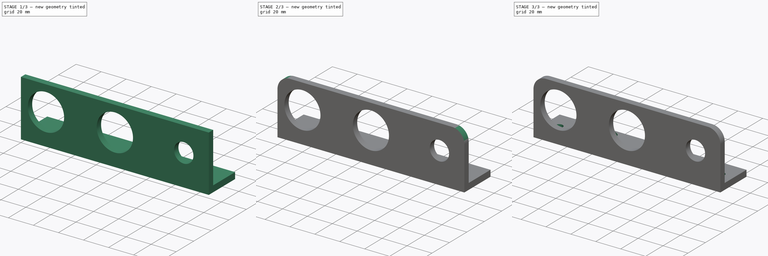
[diagram: build sequence overview — one tinted view per stage of 3, left to right]
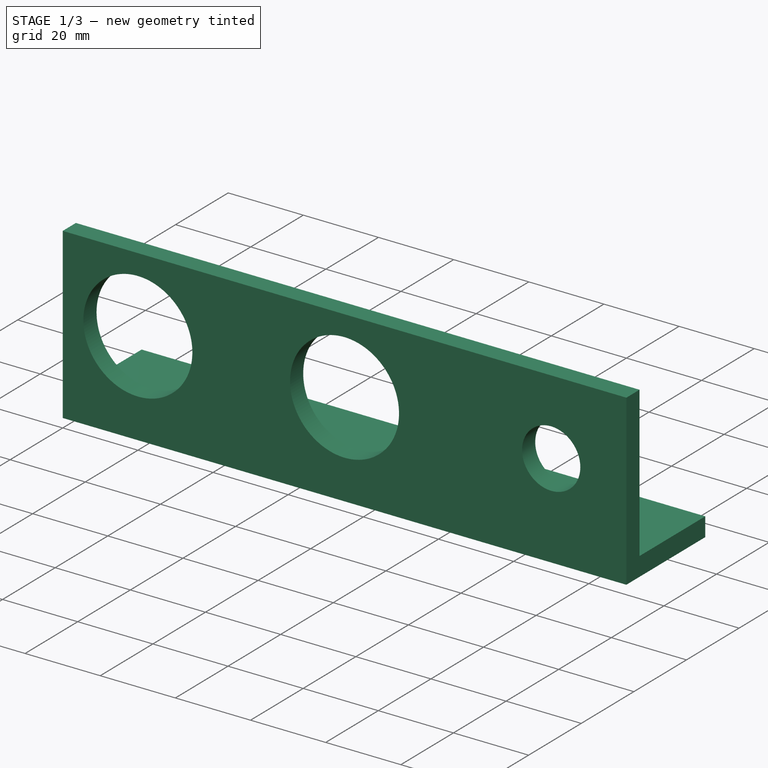
[diagram: stage 1 of 3 — iso view after this stage's code; geometry added in this stage tinted green]
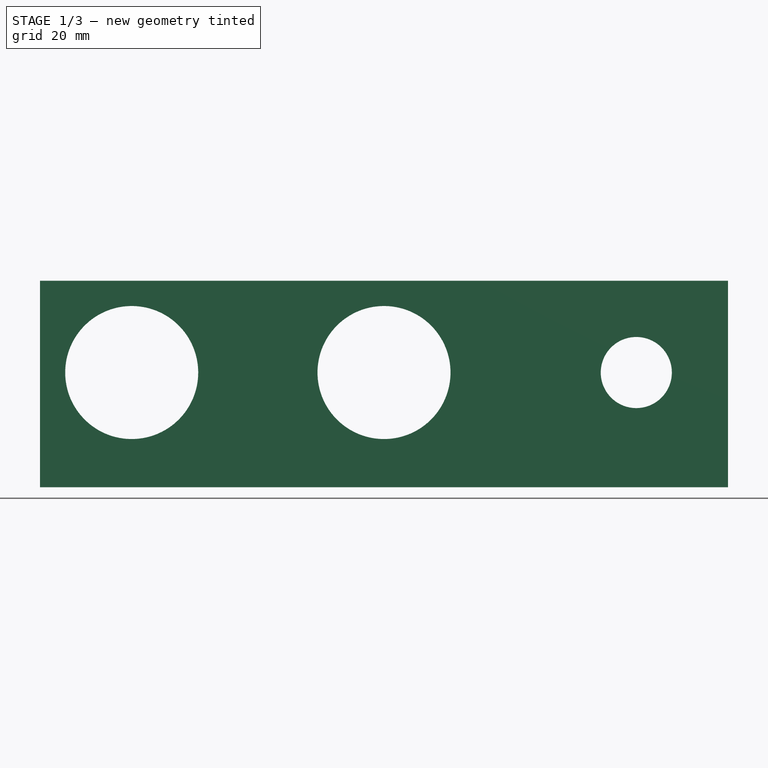
[diagram: stage 1 of 3 — front view after this stage's code; geometry added in this stage tinted green]
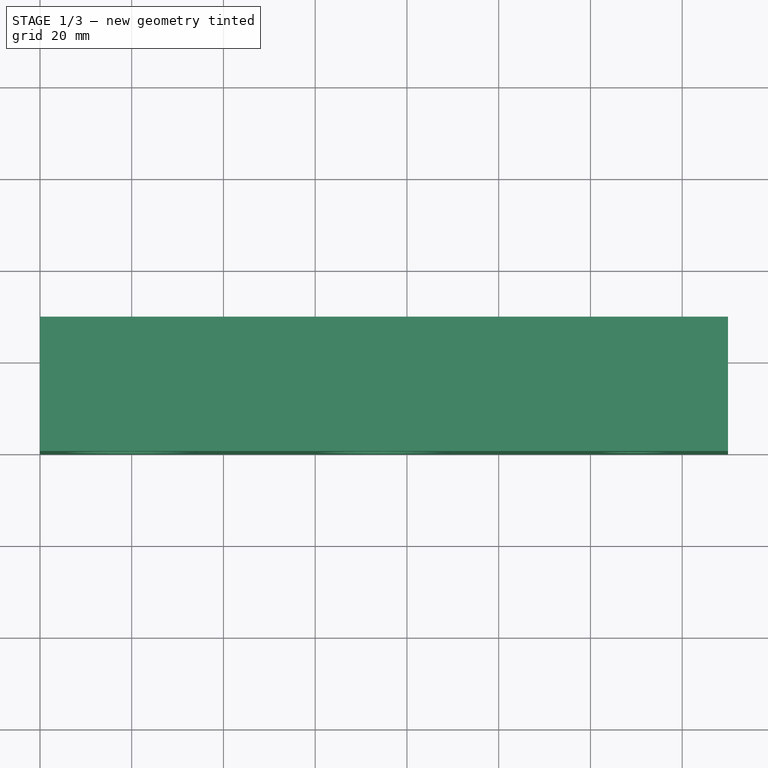
[diagram: stage 1 of 3 — top view after this stage's code; geometry added in this stage tinted green]
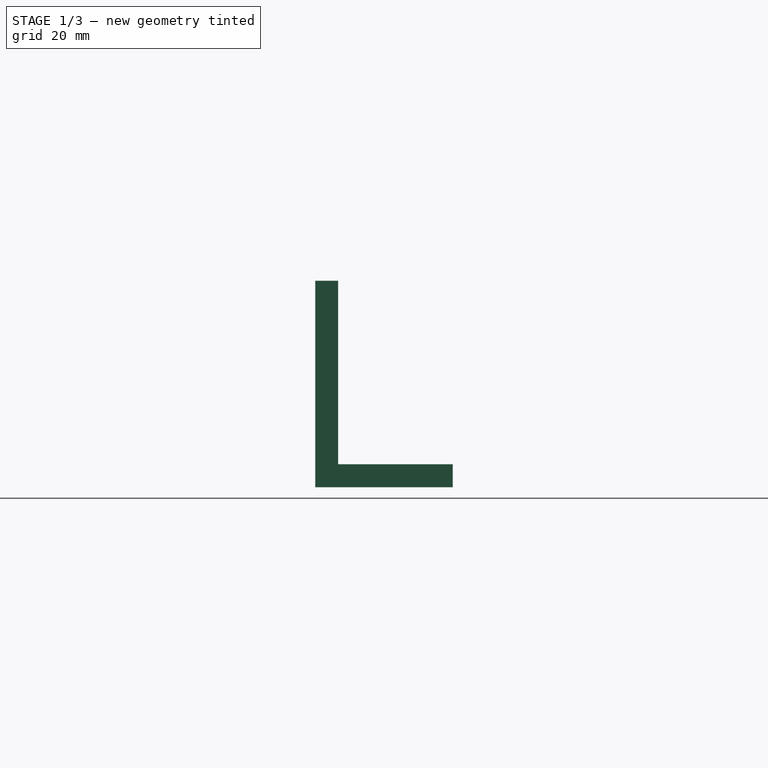
[diagram: stage 1 of 3 — right view after this stage's code; geometry added in this stage tinted green]
FCSTD DOCUMENT  (FreeCAD 0.19R24291 (Git))
Label: Haltewinkel_v2
License: All rights reserved
LicenseURL: http://en.wikipedia.org/wiki/All_rights_reserved
objects: Sketcher::SketchObject×6, PartDesign::Pad×4, PartDesign::Pocket×2, PartDesign::Fillet×1, PartDesign::Chamfer×1, PartDesign::Body×1
note: 23 computed .brp shape members not serialized (recipe doc carries the construction recipe); baked Part::Feature solids carry a one-line shape summary decoded from their .brp

FEATURE [Sketcher::SketchObject] Sketch
  FullyConstrained = true
  MapMode = 5
  Support = -> [XY_Plane]
  sketch-geometry (4):
    g0: LineSegment StartX=0 StartY=0 StartZ=0 EndX=150 EndY=0 EndZ=0
    g1: LineSegment StartX=150 StartY=0 StartZ=0 EndX=150 EndY=30 EndZ=0
    g2: LineSegment StartX=150 StartY=30 StartZ=0 EndX=0 EndY=30 EndZ=0
    g3: LineSegment StartX=0 StartY=30 StartZ=0 EndX=0 EndY=0 EndZ=0
  constraints (11):
    c: Coincident(g0,g1)
    c: Coincident(g1,g2)
    c: Coincident(g2,g3)
    c: Coincident(g3,g0)
    c: Horizontal(g0)
    c: Horizontal(g2)
    c: Vertical(g1)
    c: Vertical(g3)
    c: Coincident(g0,g-1)
    c: DistanceY(g1,g1) = 30
    c: DistanceX(g2,g2) = 150
FEATURE [PartDesign::Pad] Pad
  Direction = (1,1,1)
  Length = 5
  Length2 = 100
  Profile = -> Sketch
  Type = 0
FEATURE [Sketcher::SketchObject] Sketch001
  ExternalGeometry = -> [Pad]
  FullyConstrained = true
  MapMode = 5
  Placement = pos=(0,0,5) rot=(0,0,1;0rad)
  Support = -> [Pad]
  sketch-geometry (4):
    g0: LineSegment StartX=0 StartY=0 StartZ=0 EndX=150 EndY=0 EndZ=0
    g1: LineSegment StartX=150 StartY=0 StartZ=0 EndX=150 EndY=5 EndZ=0
    g2: LineSegment StartX=150 StartY=5 StartZ=0 EndX=0 EndY=5 EndZ=0
    g3: LineSegment StartX=0 StartY=5 StartZ=0 EndX=0 EndY=0 EndZ=0
  constraints (11):
    c: Coincident(g0,g1)
    c: Coincident(g1,g2)
    c: Coincident(g2,g3)
    c: Coincident(g3,g0)
    c: Horizontal(g0)
    c: Horizontal(g2)
    c: Vertical(g1)
    c: Vertical(g3)
    c: Coincident(g0,g-1)
    c: PointOnObject(g1,g-3)
    c: DistanceY(g1,g1) = 5
FEATURE [PartDesign::Pad] Pad001
  BaseFeature = -> Pad
  Direction = (1,1,1)
  Length = 40
  Length2 = 100
  Profile = -> Sketch001
  Type = 0
FEATURE [Sketcher::SketchObject] Sketch002
  ExternalGeometry = -> [Pad001]
  FullyConstrained = true
  MapMode = 5
  Placement = pos=(0,0,0) rot=(1,0,0;1.5708rad)
  Support = -> [Pad001]
  sketch-geometry (9):
    g0: LineSegment StartX=0 StartY=45 StartZ=0 EndX=20 EndY=25 EndZ=0
    g1: LineSegment StartX=130 StartY=25 StartZ=0 EndX=150 EndY=45 EndZ=0
    g2: LineSegment StartX=20 StartY=25 StartZ=0 EndX=0 EndY=5 EndZ=0
    g3: LineSegment StartX=130 StartY=25 StartZ=0 EndX=150 EndY=5 EndZ=0
    g4: Circle CenterX=20 CenterY=25 CenterZ=0 NormalX=0 NormalY=0 NormalZ=1 AngleXU=0 Radius=14.5
    g5: Circle CenterX=75 CenterY=25 CenterZ=0 NormalX=0 NormalY=0 NormalZ=1 AngleXU=0 Radius=14.5
    g6: Circle CenterX=130 CenterY=25 CenterZ=0 NormalX=0 NormalY=0 NormalZ=1 AngleXU=0 Radius=7.75
    g7: LineSegment StartX=20 StartY=25 StartZ=0 EndX=75 EndY=25 EndZ=0
    g8: LineSegment StartX=75 StartY=25 StartZ=0 EndX=130 EndY=25 EndZ=0
  constraints (21):
    c: Coincident(g0,g-3)
    c: Coincident(g1,g-3)
    c: Coincident(g2,g0)
    c: Coincident(g2,g-4)
    c: Coincident(g3,g-4)
    c: Equal(g1,g3)
    c: Equal(g0,g1)
    c: Coincident(g4,g0)
    c: Coincident(g7,g4)
    c: Coincident(g7,g5)
    c: Horizontal(g7)
    c: Coincident(g8,g5)
    c: Coincident(g8,g6)
    c: Horizontal(g8)
    c: Equal(g8,g7)
    c: Coincident(g6,g1)
    c: Coincident(g3,g6)
    c: Diameter(g6) = 15.5
    c: Diameter(g5) = 29
    c: Diameter(g4) = 29
    c: Angle(g0,g2) = 1.5708
FEATURE [PartDesign::Pocket] Pocket  label="Bohrungen"
  BaseFeature = -> Pad001
  Length = 5
  Length2 = 100
  Profile = -> Sketch002
  Type = 1
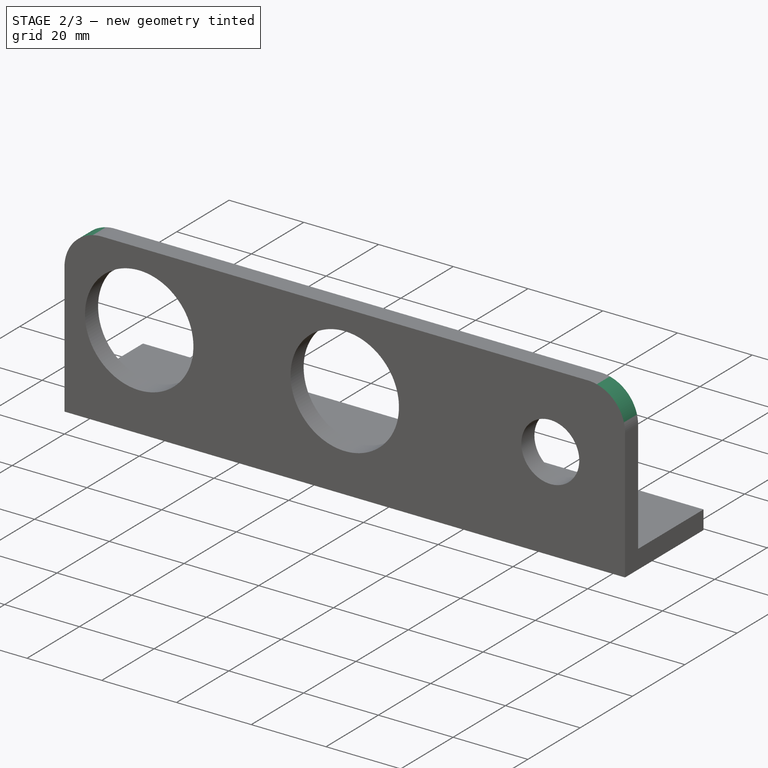
[diagram: stage 2 of 3 — iso view after this stage's code; geometry added in this stage tinted green]
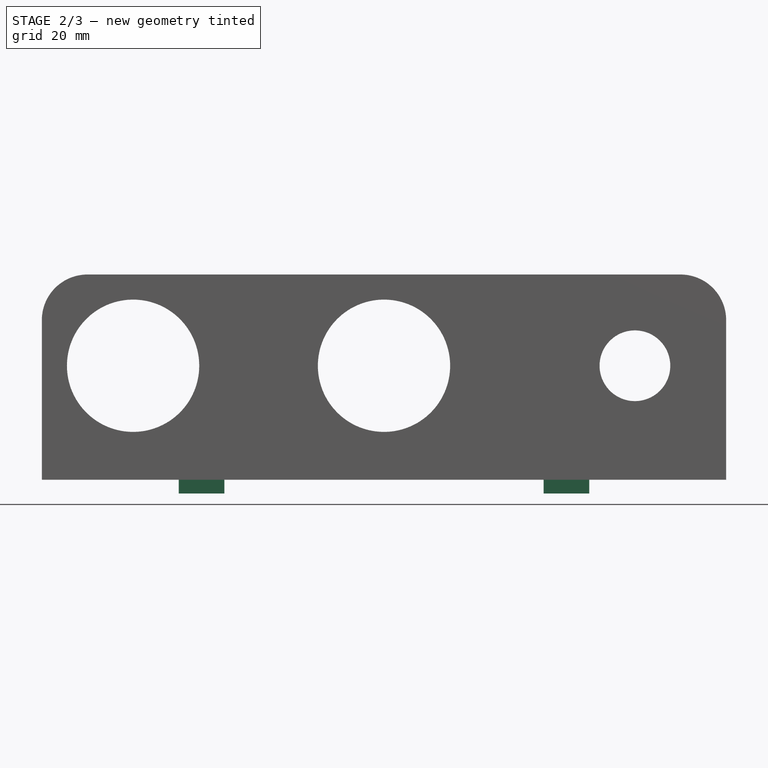
[diagram: stage 2 of 3 — front view after this stage's code; geometry added in this stage tinted green]
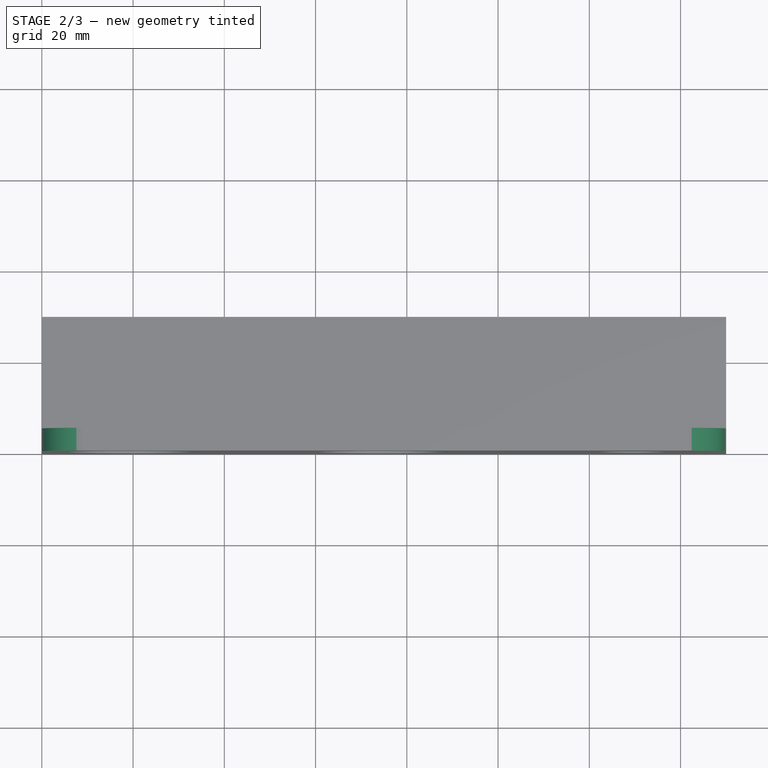
[diagram: stage 2 of 3 — top view after this stage's code; geometry added in this stage tinted green]
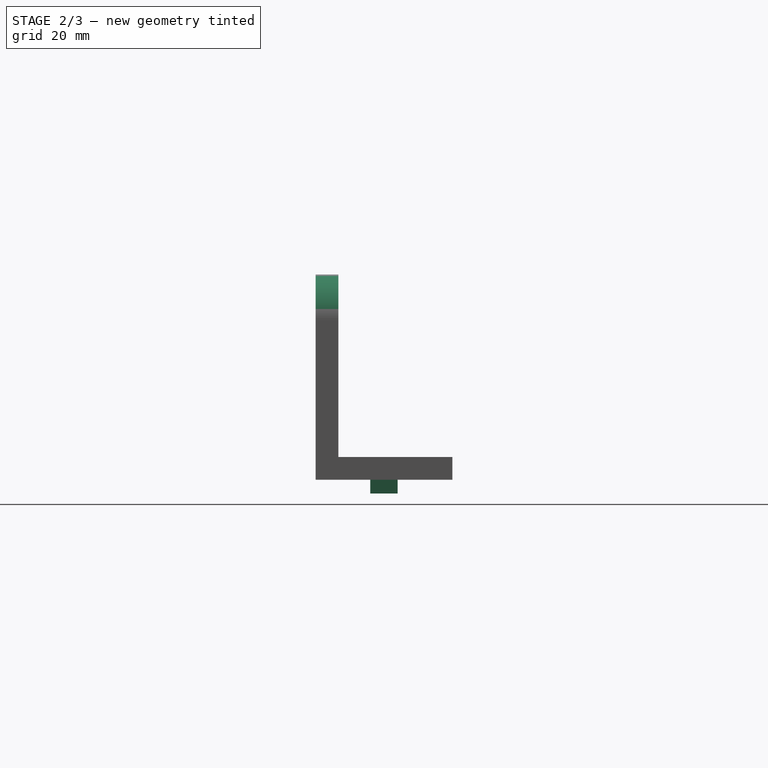
[diagram: stage 2 of 3 — right view after this stage's code; geometry added in this stage tinted green]
FEATURE [PartDesign::Fillet] Fillet  label="Abrundung"
  Base = -> Pocket [Edge25,Edge23]
  BaseFeature = -> Pocket
  Radius = 10
  SupportTransform = false
FEATURE [Sketcher::SketchObject] Sketch003
  ExternalGeometry = -> [Fillet]
  FullyConstrained = true
  MapMode = 5
  Placement = pos=(0,0,0) rot=(1,0,0;3.14159rad)
  sketch-geometry (13):
    g0: LineSegment StartX=30 StartY=-12 StartZ=0 EndX=40 EndY=-12 EndZ=0
    g1: LineSegment StartX=40 StartY=-12 StartZ=0 EndX=40 EndY=-18 EndZ=0
    g2: LineSegment StartX=40 StartY=-18 StartZ=0 EndX=30 EndY=-18 EndZ=0
    g3: LineSegment StartX=30 StartY=-18 StartZ=0 EndX=30 EndY=-12 EndZ=0
    g4: LineSegment StartX=110 StartY=-12 StartZ=0 EndX=120 EndY=-12 EndZ=0
    g5: LineSegment StartX=120 StartY=-12 StartZ=0 EndX=120 EndY=-18 EndZ=0
    g6: LineSegment StartX=120 StartY=-18 StartZ=0 EndX=110 EndY=-18 EndZ=0
    g7: LineSegment StartX=110 StartY=-18 StartZ=0 EndX=110 EndY=-12 EndZ=0
    g8: LineSegment StartX=40 StartY=-12 StartZ=0 EndX=110 EndY=-12 EndZ=0
    g9: LineSegment StartX=150 StartY=0 StartZ=0 EndX=110 EndY=-12 EndZ=0
    g10: LineSegment StartX=110 StartY=-18 StartZ=0 EndX=150 EndY=-30 EndZ=0
    g11: LineSegment StartX=30 StartY=-12 StartZ=0 EndX=0 EndY=-12 EndZ=0
    g12: LineSegment StartX=120 StartY=-12 StartZ=0 EndX=150 EndY=-12 EndZ=0
  constraints (36):
    c: Coincident(g0,g1)
    c: Coincident(g1,g2)
    c: Coincident(g2,g3)
    c: Coincident(g3,g0)
    c: Horizontal(g0)
    c: Horizontal(g2)
    c: Vertical(g1)
    c: Vertical(g3)
    c: Coincident(g4,g5)
    c: Coincident(g5,g6)
    c: Coincident(g6,g7)
    c: Coincident(g7,g4)
    c: Horizontal(g4)
    c: Horizontal(g6)
    c: Vertical(g5)
    c: Vertical(g7)
    c: Coincident(g8,g0)
    c: Coincident(g8,g4)
    c: Horizontal(g8)
    c: Equal(g7,g1)
    c: Equal(g0,g4)
    c: DistanceY(g5,g5) = 6
    c: Coincident(g9,g4)
    c: Coincident(g10,g6)
    c: Equal(g9,g10)
    c: DistanceX(g0,g0) = 10
    c: Coincident(g-3,g9)
    c: Coincident(g10,g-3)
    c: Coincident(g11,g0)
    c: PointOnObject(g11,g-2)
    c: Horizontal(g11)
    c: Coincident(g12,g4)
    c: PointOnObject(g12,g-3)
    c: Horizontal(g12)
    c: Equal(g12,g11)
    c: DistanceX(g11,g11) = 30
FEATURE [PartDesign::Pad] Pad002  label="Verdrehsicherung"
  BaseFeature = -> Fillet
  Direction = (1,1,1)
  Length = 3
  Length2 = 100
  Profile = -> Sketch003
  Type = 0
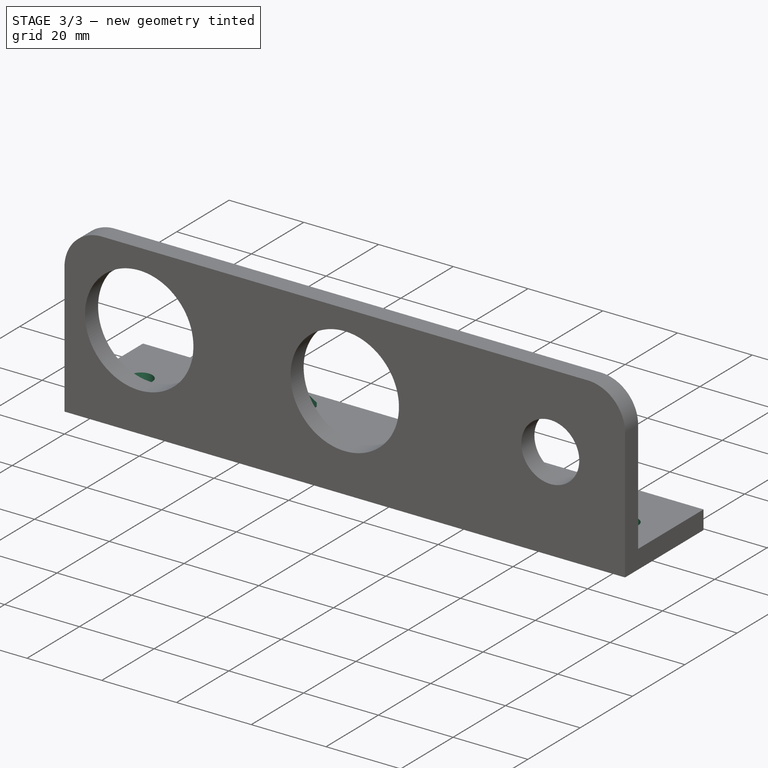
[diagram: stage 3 of 3 — iso view after this stage's code; geometry added in this stage tinted green]
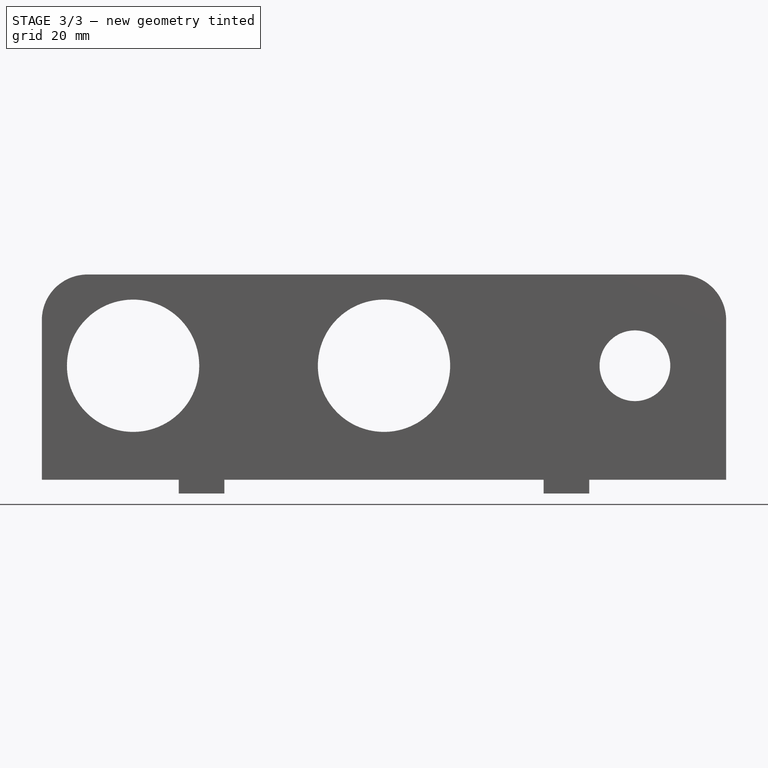
[diagram: stage 3 of 3 — front view after this stage's code; geometry added in this stage tinted green]
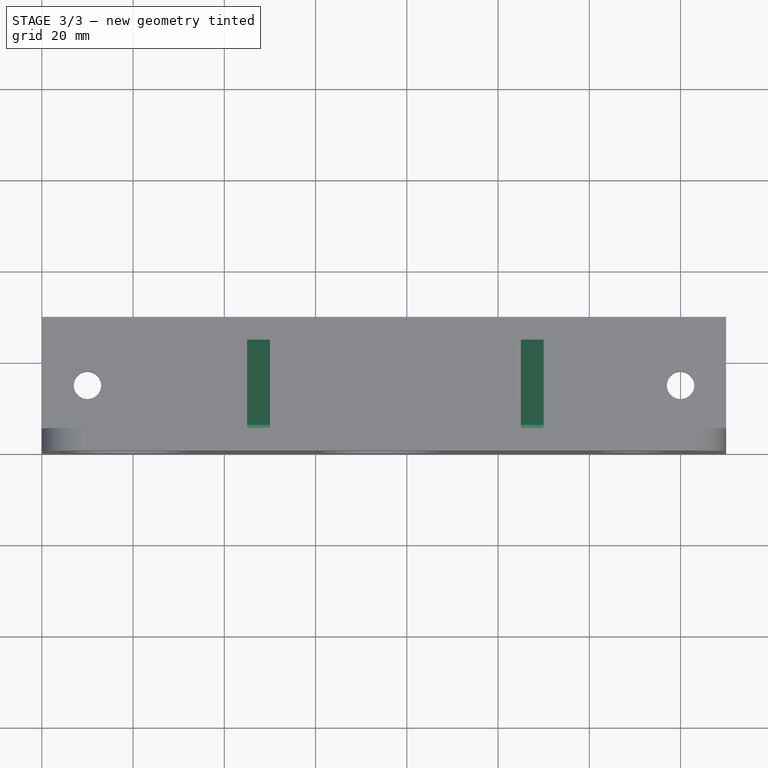
[diagram: stage 3 of 3 — top view after this stage's code; geometry added in this stage tinted green]
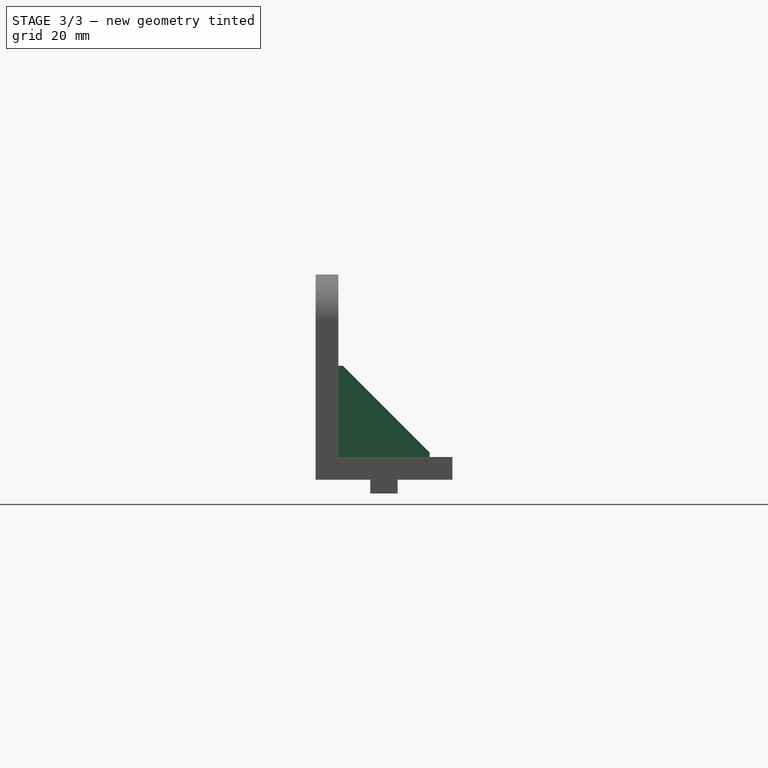
[diagram: stage 3 of 3 — right view after this stage's code; geometry added in this stage tinted green]
FEATURE [Sketcher::SketchObject] Sketch005
  ExternalGeometry = -> [Pad002]
  FullyConstrained = true
  MapMode = 5
  Placement = pos=(0,0,5) rot=(0,0,1;0rad)
  sketch-geometry (8):
    g0: LineSegment StartX=45 StartY=25 StartZ=0 EndX=50 EndY=25 EndZ=0
    g1: LineSegment StartX=50 StartY=25 StartZ=0 EndX=50 EndY=5 EndZ=0
    g2: LineSegment StartX=50 StartY=5 StartZ=0 EndX=45 EndY=5 EndZ=0
    g3: LineSegment StartX=45 StartY=5 StartZ=0 EndX=45 EndY=25 EndZ=0
    g4: LineSegment StartX=105 StartY=25 StartZ=0 EndX=110 EndY=25 EndZ=0
    g5: LineSegment StartX=110 StartY=25 StartZ=0 EndX=110 EndY=5 EndZ=0
    g6: LineSegment StartX=110 StartY=5 StartZ=0 EndX=105 EndY=5 EndZ=0
    g7: LineSegment StartX=105 StartY=5 StartZ=0 EndX=105 EndY=25 EndZ=0
  constraints (24):
    c: Coincident(g0,g1)
    c: Coincident(g1,g2)
    c: Coincident(g2,g3)
    c: Coincident(g3,g0)
    c: Horizontal(g0)
    c: Horizontal(g2)
    c: Vertical(g1)
    c: Vertical(g3)
    c: Coincident(g4,g5)
    c: Coincident(g5,g6)
    c: Coincident(g6,g7)
    c: Coincident(g7,g4)
    c: Horizontal(g4)
    c: Horizontal(g6)
    c: Vertical(g5)
    c: Vertical(g7)
    c: Equal(g4,g0)
    c: DistanceX(g0,g0) = 5
    c: Equal(g1,g7)
    c: DistanceY(g1,g1) = 20
    c: PointOnObject(g6,g-3)
    c: PointOnObject(g1,g-3)
    c: DistanceX(g4,g-3) = 40
    c: DistanceX(g-3,g0) = 45
FEATURE [PartDesign::Pad] Pad003
  BaseFeature = -> Pad002
  Direction = (1,1,1)
  Length = 20
  Length2 = 100
  Profile = -> Sketch005
  Type = 0
FEATURE [PartDesign::Chamfer] Chamfer
  Angle = 45
  Base = -> Pad003 [Edge63,Edge68]
  BaseFeature = -> Pad003
  ChamferType = 0
  FlipDirection = false
  Size = 19
  Size2 = 1
  SupportTransform = false
FEATURE [Sketcher::SketchObject] Sketch006
  ExternalGeometry = -> [Chamfer]
  FullyConstrained = true
  MapMode = 5
  Placement = pos=(0,0,0) rot=(1,0,0;3.14159rad)
  Support = -> [Chamfer]
  sketch-geometry (6):
    g0: LineSegment StartX=0 StartY=0 StartZ=0 EndX=10 EndY=-15 EndZ=0
    g1: LineSegment StartX=10 StartY=-15 StartZ=0 EndX=0 EndY=-30 EndZ=0
    g2: LineSegment StartX=150 StartY=0 StartZ=0 EndX=140 EndY=-15 EndZ=0
    g3: LineSegment StartX=140 StartY=-15 StartZ=0 EndX=150 EndY=-30 EndZ=0
    g4: Circle CenterX=10 CenterY=-15 CenterZ=0 NormalX=0 NormalY=0 NormalZ=1 AngleXU=0 Radius=3
    g5: Circle CenterX=140 CenterY=-15 CenterZ=0 NormalX=0 NormalY=0 NormalZ=1 AngleXU=0 Radius=3
  constraints (14):
    c: Coincident(g0,g-1)
    c: Coincident(g1,g0)
    c: Coincident(g1,g-3)
    c: Equal(g0,g1)
    c: Coincident(g2,g-4)
    c: Coincident(g3,g2)
    c: Coincident(g3,g-4)
    c: Equal(g3,g2)
    c: Equal(g2,g0)
    c: DistanceX(g0,g0) = 10
    c: Coincident(g4,g0)
    c: Coincident(g5,g2)
    c: Equal(g5,g4)
    c: Diameter(g4) = 6
FEATURE [PartDesign::Pocket] Pocket001
  BaseFeature = -> Chamfer
  Length = 5
  Length2 = 100
  Profile = -> Sketch006
  Type = 1
FEATURE [PartDesign::Body] Body
  Group = -> [Sketch,Pad,Sketch001,Pad001,Sketch002,Pocket,Fillet,Sketch003,Pad002,Sketch005,Pad003,Chamfer,Sketch006,Pocket001]
  Origin = -> Origin
  Tip = -> Pocket001
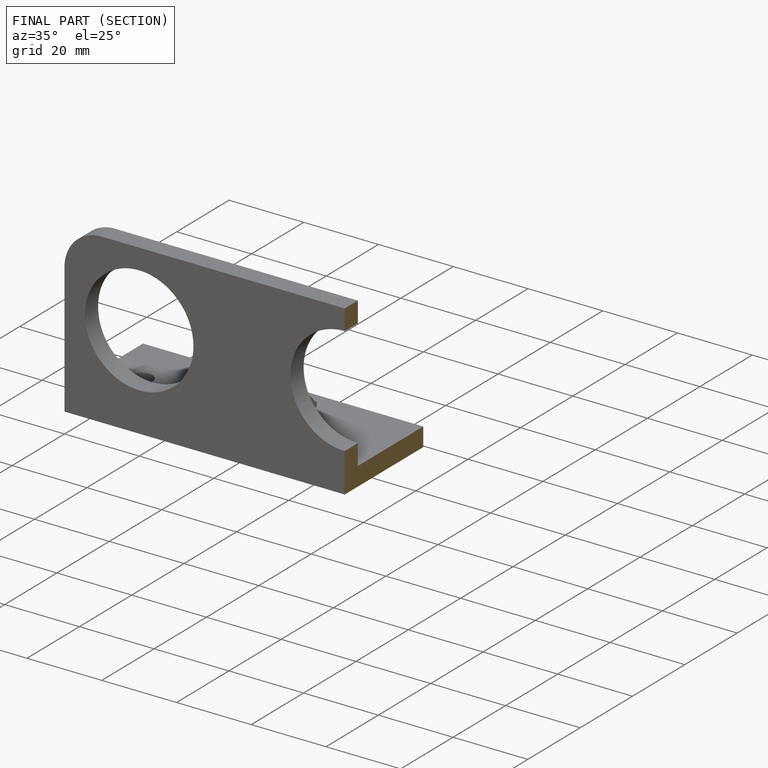
[diagram: finished part — half-section view (interior)]
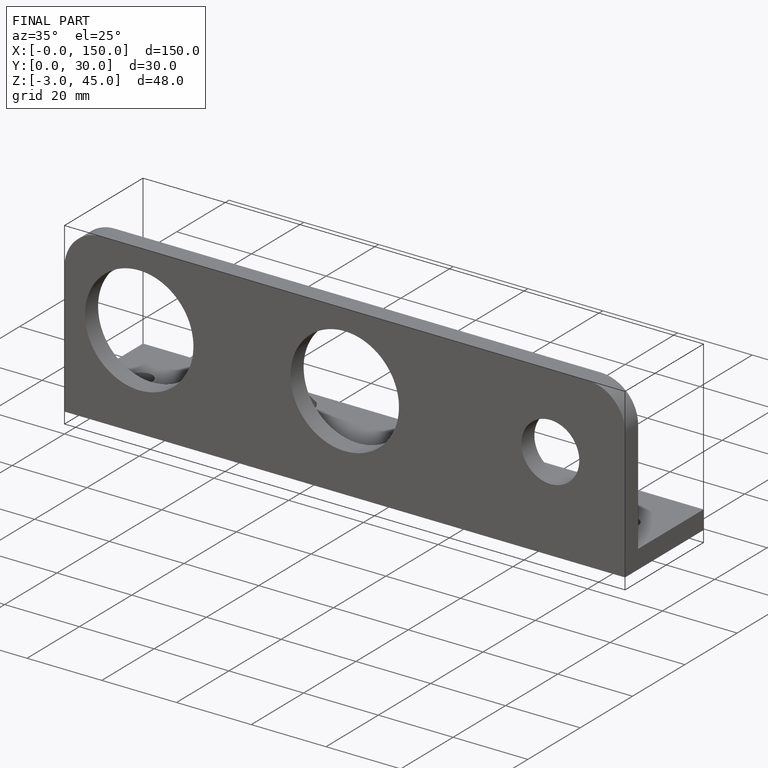
[diagram: finished part — iso view with bounding-box wireframe]
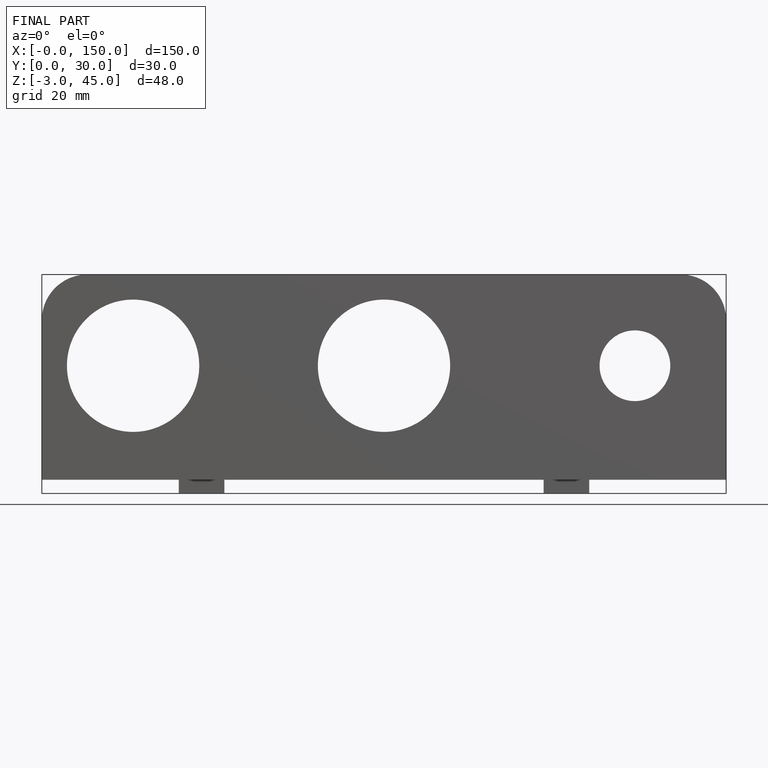
[diagram: finished part — front view with bounding-box wireframe]
